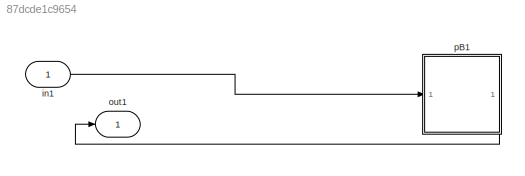
MODEL slx_87dcde1c9654
KIND model
CONFIG AbsTol = auto
CONFIG EnableMultiTasking = off
CONFIG FixedStep = auto
CONFIG MaxStep = auto
CONFIG MinStep = auto
CONFIG RelTol = 1e-3
CONFIG SampleTimeConstraint = Unconstrained
CONFIG Solver = VariableStepAuto
CONFIG SolverName = VariableStepAuto
CONFIG StartTime = 0.0
CONFIG StopTime = 10.0
BLOCK [Inport] in1
  IconDisplay = Port number
  OutDataTypeStr = int32
BLOCK [Outport] out1
  IconDisplay = Port number
  OutDataTypeStr = int32
BLOCK [ModelReference] pB1
  ModelNameDialog = PartB11
  ModelReferenceVersion = 1.1
  Ports = [1, 1]
LINE in1:1 -> pB1:1
LINE pB1:1 -> out1:1
